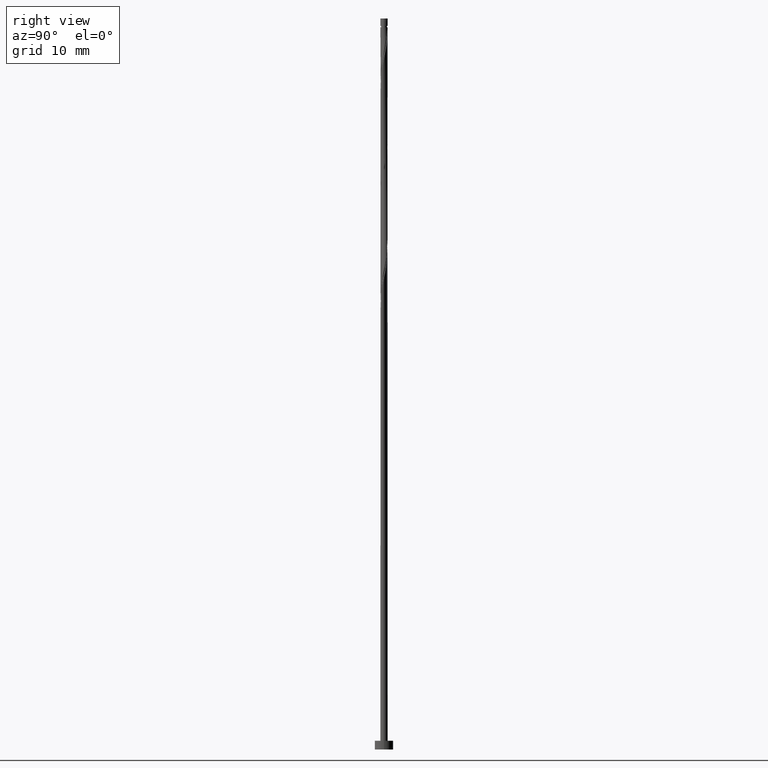
[diagram: clean part render]
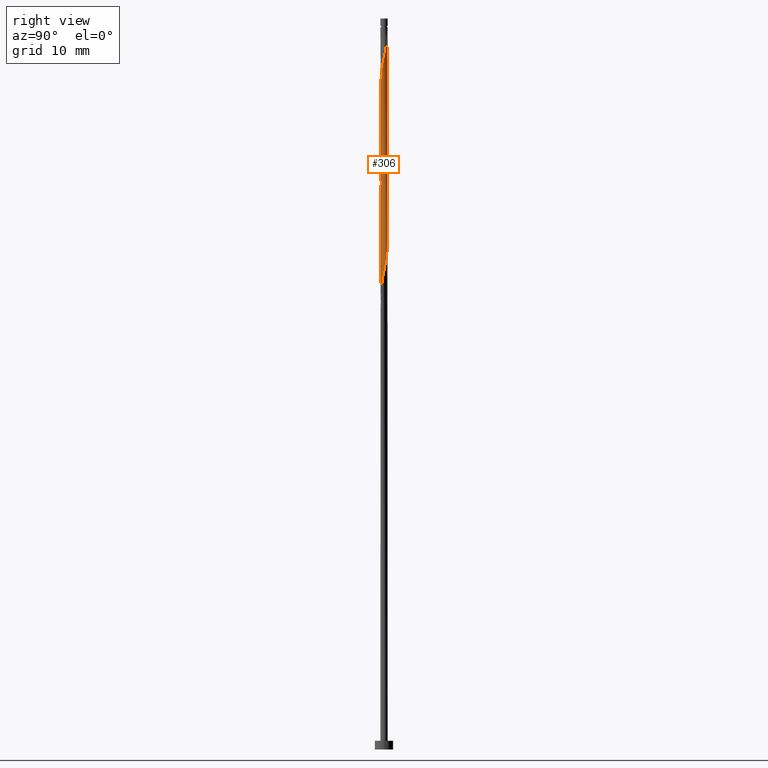
[diagram: same view with one face highlighted and labeled with its STEP entity id]
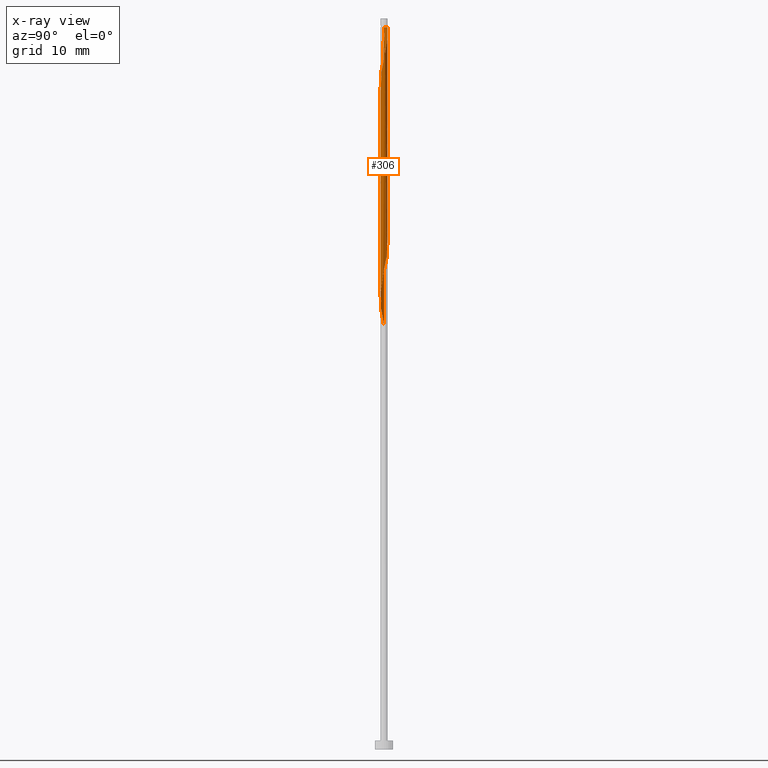
[diagram: x-ray of the same camera — body ghosted, the highlighted face saturated]
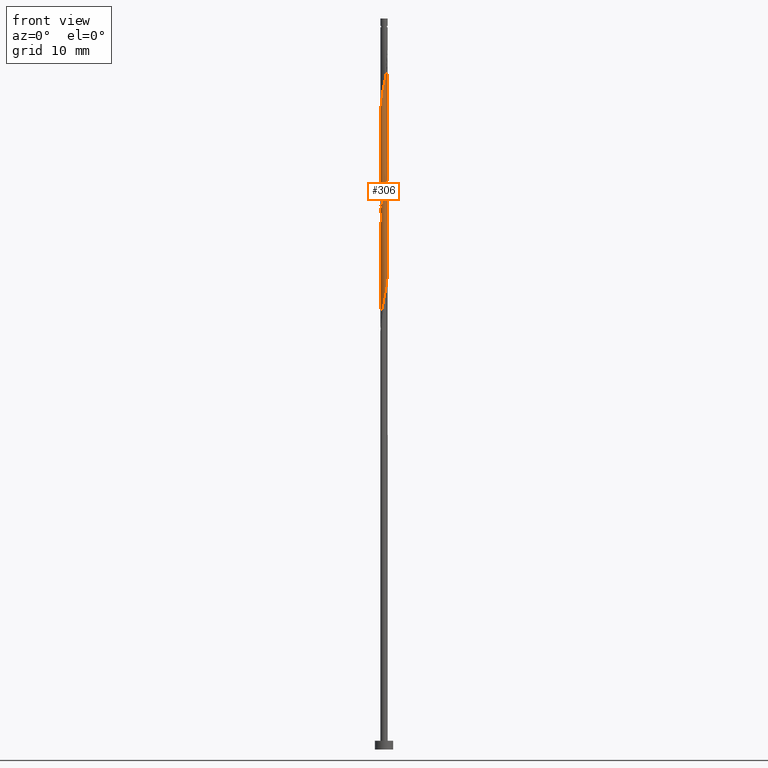
[diagram: same view with one face highlighted and labeled with its STEP entity id]
A machine part, right view. The second image highlights one B-rep face of the part: STEP entity #306.
The next image is the same camera in x-ray: the body ghosted, the highlighted face saturated — about 0% of this face is hidden behind the body in this view.
A second angle (front view) of the same face is appended — the face is thin or edge-on in the first view.
In plain terms, the highlighted cylindrical surface (bore or boss wall) has radius 0.5 mm, axis along (-0, -0, -1).
Its self-contained STEP definition (entity closure, byte-faithful):
#1 = CARTESIAN_POINT ( 'NONE',  ( 0.4741018197097064957, 0.1588315603019300470, 66.29999999999999716 ) ) ;
#8 = CARTESIAN_POINT ( 'NONE',  ( 0.4460955302404527867, 0.2424285027197315423, 66.71666666666668277 ) ) ;
#12 = CYLINDRICAL_SURFACE ( 'NONE', #976, 0.5000000000000000000 ) ;
#15 = CARTESIAN_POINT ( 'NONE',  ( 0.5000000000000007772, 2.959782747103310096E-16, 80.52776939948985557 ) ) ;
#23 = CARTESIAN_POINT ( 'NONE',  ( 0.2387454690295328086, -0.4393183367648896831, 62.96666666666668277 ) ) ;
#35 = EDGE_CURVE ( 'NONE', #68, #916, #470, .T. ) ;
#51 = LINE ( 'NONE', #484, #1127 ) ;
#62 = CARTESIAN_POINT ( 'NONE',  ( -0.01309852316351531321, 0.5075443130627873556, 98.38333333333332575 ) ) ;
#68 = VERTEX_POINT ( 'NONE', #672 ) ;
#69 = CARTESIAN_POINT ( 'NONE',  ( 0.3362772466861008169, 0.3803819322636879940, 82.54999999999998295 ) ) ;
#77 = EDGE_CURVE ( 'NONE', #803, #916, #131, .T. ) ;
#100 = CARTESIAN_POINT ( 'NONE',  ( -0.5021081091789604267, -0.07523461788412846851, 73.38333333333332575 ) ) ;
#106 = CARTESIAN_POINT ( 'NONE',  ( 0.4975590398240158918, -0.1010336722130055764, 80.05000000000002558 ) ) ;
#110 = DIRECTION ( 'NONE',  ( -0.000000000000000000, -0.000000000000000000, -1.000000000000000000 ) ) ;
#114 = CARTESIAN_POINT ( 'NONE',  ( -0.01309852316351412145, -0.5075443130627871335, 61.71666666666667567 ) ) ;
#117 = EDGE_CURVE ( 'NONE', #812, #882, #1317, .T. ) ;
#123 = CARTESIAN_POINT ( 'NONE',  ( 0.2610881054719556005, 0.4264188096004509765, 67.96666666666668277 ) ) ;
#131 = LINE ( 'NONE', #151, #1026 ) ;
#151 = CARTESIAN_POINT ( 'NONE',  ( -0.5000000000000000000, 0.000000000000000000, 100.0000000000000000 ) ) ;
#156 = CARTESIAN_POINT ( 'NONE',  ( -0.5000000000000014433, -0.08152718591022664607, 58.41469696061894012 ) ) ;
#175 = CARTESIAN_POINT ( 'NONE',  ( -0.2387454690295328086, 0.4393183367648896831, 85.46666666666665435 ) ) ;
#187 = EDGE_LOOP ( 'NONE', ( #607, #758, #1189, #451, #907, #781, #670, #373 ) ) ;
#214 = DIRECTION ( 'NONE',  ( -1.000000000000000000, 0.000000000000000000, 0.000000000000000000 ) ) ;
#221 = VERTEX_POINT ( 'NONE', #751 ) ;
#226 = CARTESIAN_POINT ( 'NONE',  ( 0.1612817931379150194, -0.4814156044766936260, 62.54999999999999716 ) ) ;
#245 = CARTESIAN_POINT ( 'NONE',  ( 0.3911863884632766908, -0.3114052174917099070, 92.96666666666666856 ) ) ;
#251 = CARTESIAN_POINT ( 'NONE',  ( 0.3362772466861005394, -0.3803819322636883271, 92.55000000000001137 ) ) ;
#261 = CARTESIAN_POINT ( 'NONE',  ( -0.3746030759990447989, -0.3311684396980705825, 88.79999999999996874 ) ) ;
#263 = CARTESIAN_POINT ( 'NONE',  ( -0.3911863884632766353, -0.3114052174917097404, 59.63333333333333286 ) ) ;
#270 = CARTESIAN_POINT ( 'NONE',  ( 0.5021081091789604267, -0.07523461788412882933, 94.21666666666666856 ) ) ;
#284 = EDGE_CURVE ( 'NONE', #812, #383, #1219, .T. ) ;
#296 = CARTESIAN_POINT ( 'NONE',  ( -0.2610881054719552674, -0.4264188096004511985, 75.46666666666665435 ) ) ;
#306 = ADVANCED_FACE ( 'NONE', ( #648 ), #12, .T. ) ;
#309 = CARTESIAN_POINT ( 'NONE',  ( 0.09949874371066202983, 0.4900000000000007683, 83.79999999999998295 ) ) ;
#329 = CARTESIAN_POINT ( 'NONE',  ( 0.4329970070769386670, -0.2651158103430559243, 64.21666666666665435 ) ) ;
#337 = CARTESIAN_POINT ( 'NONE',  ( -0.3362772466861005394, -0.3803819322636881606, 60.04999999999998295 ) ) ;
#346 = CARTESIAN_POINT ( 'NONE',  ( -0.09949874371066196044, -0.4900000000000007683, 61.29999999999999716 ) ) ;
#359 = CARTESIAN_POINT ( 'NONE',  ( -0.07409163498720072738, -0.4944799587697403798, 90.46666666666665435 ) ) ;
#365 = CARTESIAN_POINT ( 'NONE',  ( -0.5000000000000007772, -0.006450837166011485872, 87.10284623704926332 ) ) ;
#372 =( BOUNDED_CURVE ( )  B_SPLINE_CURVE ( 2, ( #714, #1155, #513, #1251, #1354, #608, #720, #826, #175, #415, #837, #1037, #309, #506, #1150, #69, #736, #501, #1246, #922, #934 ),
 .UNSPECIFIED., .F., .T. ) 
 B_SPLINE_CURVE_WITH_KNOTS ( ( 3, 2, 2, 2, 2, 2, 2, 2, 2, 2, 3 ),
 ( 0.4295248053855291737, 0.4305555555555555802, 0.4444444444444444198, 0.4583333333333333148, 0.4722222222222222099, 0.4861111111111111049, 0.5000000000000000000, 0.5138888888888888395, 0.5277777777777777901, 0.5416666666666666297, 0.5545248053855290626 ),
 .UNSPECIFIED. ) 
 CURVE ( )  GEOMETRIC_REPRESENTATION_ITEM ( )  RATIONAL_B_SPLINE_CURVE ( ( 0.9071930855141275840, 0.9080659294509750845, 0.9090909090909150558, 0.8952797754656496299, 0.9090909090909150558, 0.8952797754656496299, 0.9090909090909150558, 0.8952797754656496299, 0.9090909090909150558, 0.8952797754656496299, 0.9090909090909150558, 0.8952797754656496299, 0.9090909090909150558, 0.8952797754656496299, 0.9090909090909150558, 0.8952797754656496299, 0.9090909090909150558, 0.8952797754656496299, 0.9090909090909150558, 0.8963047551055897122, 0.9071930855141273620 ) ) 
 REPRESENTATION_ITEM ( '' )  );
#373 = ORIENTED_EDGE ( 'NONE', *, *, #946, .F. ) ;
#374 = CARTESIAN_POINT ( 'NONE',  ( 0.4975590398240160028, 0.1010336722130053960, 95.04999999999998295 ) ) ;
#383 = VERTEX_POINT ( 'NONE', #776 ) ;
#410 = CARTESIAN_POINT ( 'NONE',  ( -0.4998335745014880205, 0.01289952716443853141, 72.96666666666664014 ) ) ;
#415 = CARTESIAN_POINT ( 'NONE',  ( -0.1612817931379151581, 0.4814156044766936260, 85.04999999999996874 ) ) ;
#428 = DIRECTION ( 'NONE',  ( -1.000000000000000000, 0.000000000000000000, 0.000000000000000000 ) ) ;
#431 = CARTESIAN_POINT ( 'NONE',  ( -0.1612817931379151581, 0.4814156044766936260, 70.05000000000001137 ) ) ;
#435 = CARTESIAN_POINT ( 'NONE',  ( 0.000000000000000000, 0.000000000000000000, 98.79999999999999716 ) ) ;
#439 = CARTESIAN_POINT ( 'NONE',  ( 0.4652780234504772516, -0.1830747412780305561, 64.63333333333333997 ) ) ;
#443 = DIRECTION ( 'NONE',  ( -0.000000000000000000, -0.000000000000000000, -1.000000000000000000 ) ) ;
#448 = CARTESIAN_POINT ( 'NONE',  ( -0.2610881054719552674, -0.4264188096004511985, 60.46666666666666146 ) ) ;
#451 = ORIENTED_EDGE ( 'NONE', *, *, #77, .T. ) ;
#470 =( BOUNDED_CURVE ( )  B_SPLINE_CURVE ( 2, ( #15, #725, #1084, #106, #754, #1284, #535, #644, #1271, #1047, #868, #763, #1149, #1192, #296, #1178, #511, #877, #1090, #100, #410, #652, #933, #619, #549, #831, #1293, #431, #1250, #1069, #1277, #1172, #123, #963, #956, #8, #1, #1185, #853, #1077, #439, #329, #979, #557, #23, #226, #746, #114, #346, #971, #448, #337, #263, #885, #1212, #156, #569 ),
 .UNSPECIFIED., .F., .T. ) 
 B_SPLINE_CURVE_WITH_KNOTS ( ( 3, 2, 2, 2, 2, 2, 2, 2, 2, 2, 2, 2, 2, 2, 2, 2, 2, 2, 2, 2, 2, 2, 2, 2, 2, 2, 2, 2, 3 ),
 ( 0.5545248053855290626, 0.5555555555555555802, 0.5694444444444444198, 0.5833333333333333703, 0.5972222222222222099, 0.6111111111111111605, 0.6250000000000000000, 0.6388888888888888395, 0.6527777777777777901, 0.6666666666666666297, 0.6805555555555555802, 0.6944444444444444198, 0.7083333333333333703, 0.7222222222222222099, 0.7361111111111111605, 0.7500000000000000000, 0.7638888888888888395, 0.7777777777777777901, 0.7916666666666666297, 0.8055555555555555802, 0.8194444444444444198, 0.8333333333333333703, 0.8472222222222222099, 0.8611111111111111605, 0.8750000000000000000, 0.8888888888888888395, 0.9027777777777777901, 0.9166666666666666297, 0.9295248053855293957 ),
 .UNSPECIFIED. ) 
 CURVE ( )  GEOMETRIC_REPRESENTATION_ITEM ( )  RATIONAL_B_SPLINE_CURVE ( ( 0.9071930855141273620, 0.9080659294509749735, 0.9090909090909150558, 0.8952797754656496299, 0.9090909090909150558, 0.8952797754656496299, 0.9090909090909150558, 0.8952797754656496299, 0.9090909090909150558, 0.8952797754656496299, 0.9090909090909150558, 0.8952797754656496299, 0.9090909090909150558, 0.8952797754656496299, 0.9090909090909150558, 0.8952797754656496299, 0.9090909090909150558, 0.8952797754656496299, 0.9090909090909150558, 0.8952797754656496299, 0.9090909090909150558, 0.8952797754656496299, 0.9090909090909150558, 0.8952797754656496299, 0.9090909090909150558, 0.8952797754656496299, 0.9090909090909150558, 0.8952797754656496299, 0.9090909090909150558, 0.8952797754656496299, 0.9090909090909150558, 0.8952797754656496299, 0.9090909090909150558, 0.8952797754656496299, 0.9090909090909150558, 0.8952797754656496299, 0.9090909090909150558, 0.8952797754656496299, 0.9090909090909150558, 0.8952797754656496299, 0.9090909090909150558, 0.8952797754656496299, 0.9090909090909150558, 0.8952797754656496299, 0.9090909090909150558, 0.8952797754656496299, 0.9090909090909150558, 0.8952797754656496299, 0.9090909090909150558, 0.8952797754656496299, 0.9090909090909150558, 0.8952797754656496299, 0.9090909090909150558, 0.8952797754656496299, 0.9090909090909150558, 0.8963047551055893791, 0.9071930855141279171 ) ) 
 REPRESENTATION_ITEM ( '' )  );
#484 = CARTESIAN_POINT ( 'NONE',  ( 0.5000000000000000000, 6.123233995736766036E-17, 100.0000000000000000 ) ) ;
#501 = CARTESIAN_POINT ( 'NONE',  ( 0.4460955302404527867, 0.2424285027197315423, 81.71666666666664014 ) ) ;
#506 = CARTESIAN_POINT ( 'NONE',  ( 0.1858989642578099122, 0.4724556869372143475, 83.38333333333332575 ) ) ;
#511 = CARTESIAN_POINT ( 'NONE',  ( -0.3911863884632766353, -0.3114052174917097404, 74.63333333333331154 ) ) ;
#513 = CARTESIAN_POINT ( 'NONE',  ( -0.4998335745014880205, 0.01289952716443853141, 87.96666666666666856 ) ) ;
#525 = CARTESIAN_POINT ( 'NONE',  ( -0.5000000000000006661, 1.559254633332027816E-16, 88.02776939948988399 ) ) ;
#535 = CARTESIAN_POINT ( 'NONE',  ( 0.3746030759990445214, -0.3311684396980708600, 78.80000000000002558 ) ) ;
#549 = CARTESIAN_POINT ( 'NONE',  ( -0.3746030759990446324, 0.3311684396980706935, 71.29999999999999716 ) ) ;
#557 = CARTESIAN_POINT ( 'NONE',  ( 0.3162091449211504313, -0.3972210690530859067, 63.38333333333333286 ) ) ;
#562 = CARTESIAN_POINT ( 'NONE',  ( 0.000000000000000000, 0.000000000000000000, 100.0000000000000000 ) ) ;
#569 = CARTESIAN_POINT ( 'NONE',  ( -0.5000000000000006661, -4.855164127740446616E-16, 58.02776939948987689 ) ) ;
#580 = CARTESIAN_POINT ( 'NONE',  ( 0.4460955302404527867, -0.2424285027197316811, 93.38333333333333997 ) ) ;
#596 = CARTESIAN_POINT ( 'NONE',  ( 0.3162091449211505423, 0.3972210690530860178, 96.71666666666665435 ) ) ;
#602 = CARTESIAN_POINT ( 'NONE',  ( -0.5000000000000007772, -9.803696796398973244E-17, 87.07223060051012453 ) ) ;
#607 = ORIENTED_EDGE ( 'NONE', *, *, #117, .F. ) ;
#608 = CARTESIAN_POINT ( 'NONE',  ( -0.4329970070769387780, 0.2651158103430555912, 86.71666666666666856 ) ) ;
#619 = CARTESIAN_POINT ( 'NONE',  ( -0.4329970070769387780, 0.2651158103430555912, 71.71666666666664014 ) ) ;
#622 = AXIS2_PLACEMENT_3D ( 'NONE', #435, #110, #214 ) ;
#644 = CARTESIAN_POINT ( 'NONE',  ( 0.3162091449211504313, -0.3972210690530859067, 78.38333333333332575 ) ) ;
#648 = FACE_OUTER_BOUND ( 'NONE', #187, .T. ) ;
#652 = CARTESIAN_POINT ( 'NONE',  ( -0.4975590398240158918, 0.1010336722130055070, 72.54999999999999716 ) ) ;
#661 = EDGE_CURVE ( 'NONE', #803, #383, #806, .T. ) ;
#670 = ORIENTED_EDGE ( 'NONE', *, *, #1194, .T. ) ;
#672 = CARTESIAN_POINT ( 'NONE',  ( 0.5000000000000007772, 2.959782747103310096E-16, 80.52776939948985557 ) ) ;
#678 = CARTESIAN_POINT ( 'NONE',  ( -0.5000000000000000000, 0.000000000000000000, 100.0000000000000000 ) ) ;
#686 = DIRECTION ( 'NONE',  ( -0.000000000000000000, -0.000000000000000000, -1.000000000000000000 ) ) ;
#699 = CARTESIAN_POINT ( 'NONE',  ( 0.2387454690295330029, 0.4393183367648896831, 97.13333333333333997 ) ) ;
#707 = CARTESIAN_POINT ( 'NONE',  ( -0.4652780234504773071, -0.1830747412780305006, 87.96666666666666856 ) ) ;
#714 = CARTESIAN_POINT ( 'NONE',  ( -0.5000000000000006661, 1.559254633332027816E-16, 88.02776939948988399 ) ) ;
#720 = CARTESIAN_POINT ( 'NONE',  ( -0.3746030759990446324, 0.3311684396980706935, 86.29999999999999716 ) ) ;
#725 = CARTESIAN_POINT ( 'NONE',  ( 0.5000000000000007772, -0.006450837166010383456, 80.49715376295073099 ) ) ;
#731 = CARTESIAN_POINT ( 'NONE',  ( -0.5000000000000002220, 0.000000000000000000, 98.79999999999999716 ) ) ;
#736 = CARTESIAN_POINT ( 'NONE',  ( 0.3911863884632766353, 0.3114052174917097404, 82.13333333333333997 ) ) ;
#746 = CARTESIAN_POINT ( 'NONE',  ( 0.07409163498720061636, -0.4944799587697402687, 62.13333333333331865 ) ) ;
#751 = CARTESIAN_POINT ( 'NONE',  ( 0.5000000000000000000, 6.123233995736766036E-17, 98.79999999999999716 ) ) ;
#754 = CARTESIAN_POINT ( 'NONE',  ( 0.4652780234504772516, -0.1830747412780305561, 79.63333333333333997 ) ) ;
#758 = ORIENTED_EDGE ( 'NONE', *, *, #284, .T. ) ;
#763 = CARTESIAN_POINT ( 'NONE',  ( -0.01309852316351412145, -0.5075443130627871335, 76.71666666666666856 ) ) ;
#776 = CARTESIAN_POINT ( 'NONE',  ( -0.09949874371066166900, 0.4899999999999998801, 98.79999999999999716 ) ) ;
#781 = ORIENTED_EDGE ( 'NONE', *, *, #1194, .F. ) ;
#783 = CARTESIAN_POINT ( 'NONE',  ( 0.01309852316351374675, -0.5075443130627872446, 90.88333333333333997 ) ) ;
#790 = CARTESIAN_POINT ( 'NONE',  ( -0.3162091449211504868, -0.3972210690530860178, 89.21666666666668277 ) ) ;
#796 = CARTESIAN_POINT ( 'NONE',  ( 0.4329970070769391111, 0.2651158103430553137, 95.88333333333333997 ) ) ;
#803 = VERTEX_POINT ( 'NONE', #602 ) ;
#806 =( BOUNDED_CURVE ( )  B_SPLINE_CURVE ( 2, ( #889, #365, #1217, #902, #707, #1109, #261, #790, #1303, #1315, #359, #783, #1017, #1204, #908, #251, #245, #580, #1000, #270, #1309, #374, #1024, #796, #1330, #596, #699, #1128, #896, #62, #917 ),
 .UNSPECIFIED., .F., .T. ) 
 B_SPLINE_CURVE_WITH_KNOTS ( ( 3, 2, 2, 2, 2, 2, 2, 2, 2, 2, 2, 2, 2, 2, 2, 3 ),
 ( 0.5545248053855292847, 0.5555555555555555802, 0.5694444444444444198, 0.5833333333333332593, 0.5972222222222222099, 0.6111111111111112715, 0.6250000000000001110, 0.6388888888888889506, 0.6527777777777779011, 0.6666666666666668517, 0.6805555555555556912, 0.6944444444444446418, 0.7083333333333334814, 0.7222222222222224319, 0.7361111111111113825, 0.7500000000000002220 ),
 .UNSPECIFIED. ) 
 CURVE ( )  GEOMETRIC_REPRESENTATION_ITEM ( )  RATIONAL_B_SPLINE_CURVE ( ( 0.9071930855141279171, 0.9080659294509754176, 0.9090909090909153889, 0.8952797754656498519, 0.9090909090909153889, 0.8952797754656498519, 0.9090909090909153889, 0.8952797754656498519, 0.9090909090909153889, 0.8952797754656498519, 0.9090909090909153889, 0.8952797754656498519, 0.9090909090909153889, 0.8952797754656498519, 0.9090909090909153889, 0.8952797754656498519, 0.9090909090909153889, 0.8952797754656498519, 0.9090909090909153889, 0.8952797754656498519, 0.9090909090909153889, 0.8952797754656498519, 0.9090909090909153889, 0.8952797754656498519, 0.9090909090909153889, 0.8952797754656498519, 0.9090909090909153889, 0.8952797754656498519, 0.9090909090909153889, 0.8952797754656496299, 0.9090909090909156109 ) ) 
 REPRESENTATION_ITEM ( '' )  );
#812 = VERTEX_POINT ( 'NONE', #731 ) ;
#822 = VECTOR ( 'NONE', #1010, 1000.000000000000000 ) ;
#826 = CARTESIAN_POINT ( 'NONE',  ( -0.3162091449211504313, 0.3972210690530858512, 85.88333333333335418 ) ) ;
#831 = CARTESIAN_POINT ( 'NONE',  ( -0.3162091449211504313, 0.3972210690530858512, 70.88333333333331154 ) ) ;
#837 = CARTESIAN_POINT ( 'NONE',  ( -0.07409163498720063024, 0.4944799587697402687, 84.63333333333332575 ) ) ;
#853 = CARTESIAN_POINT ( 'NONE',  ( 0.4998335745014881315, -0.01289952716443870315, 65.46666666666666856 ) ) ;
#868 = CARTESIAN_POINT ( 'NONE',  ( 0.07409163498720061636, -0.4944799587697402687, 77.13333333333332575 ) ) ;
#877 = CARTESIAN_POINT ( 'NONE',  ( -0.4460955302404527312, -0.2424285027197316256, 74.21666666666666856 ) ) ;
#882 = VERTEX_POINT ( 'NONE', #525 ) ;
#885 = CARTESIAN_POINT ( 'NONE',  ( -0.4460955302404527312, -0.2424285027197316256, 59.21666666666666146 ) ) ;
#889 = CARTESIAN_POINT ( 'NONE',  ( -0.5000000000000007772, -9.803696796398973244E-17, 87.07223060051012453 ) ) ;
#896 = CARTESIAN_POINT ( 'NONE',  ( 0.07409163498720100494, 0.4944799587697403798, 97.96666666666666856 ) ) ;
#902 = CARTESIAN_POINT ( 'NONE',  ( -0.4975590398240160028, -0.1010336722130054932, 87.55000000000001137 ) ) ;
#905 = DIRECTION ( 'NONE',  ( -0.000000000000000000, -0.000000000000000000, -1.000000000000000000 ) ) ;
#907 = ORIENTED_EDGE ( 'NONE', *, *, #35, .F. ) ;
#908 = CARTESIAN_POINT ( 'NONE',  ( 0.2610881054719552119, -0.4264188096004513095, 92.13333333333335418 ) ) ;
#916 = VERTEX_POINT ( 'NONE', #1261 ) ;
#917 = CARTESIAN_POINT ( 'NONE',  ( -0.09949874371066166900, 0.4899999999999998801, 98.80000000000001137 ) ) ;
#922 = CARTESIAN_POINT ( 'NONE',  ( 0.5000000000000006661, 0.08152718591022839467, 80.91469696061896855 ) ) ;
#933 = CARTESIAN_POINT ( 'NONE',  ( -0.4652780234504771961, 0.1830747412780305838, 72.13333333333333997 ) ) ;
#934 = CARTESIAN_POINT ( 'NONE',  ( 0.5000000000000007772, 2.959782747103310096E-16, 80.52776939948985557 ) ) ;
#946 = EDGE_CURVE ( 'NONE', #882, #68, #372, .T. ) ;
#956 = CARTESIAN_POINT ( 'NONE',  ( 0.3911863884632766353, 0.3114052174917097404, 67.13333333333333997 ) ) ;
#963 = CARTESIAN_POINT ( 'NONE',  ( 0.3362772466861008169, 0.3803819322636879940, 67.54999999999999716 ) ) ;
#971 = CARTESIAN_POINT ( 'NONE',  ( -0.1858989642578100510, -0.4724556869372142365, 60.88333333333333286 ) ) ;
#976 = AXIS2_PLACEMENT_3D ( 'NONE', #562, #443, #428 ) ;
#979 = CARTESIAN_POINT ( 'NONE',  ( 0.3746030759990445214, -0.3311684396980708600, 63.80000000000001137 ) ) ;
#1000 = CARTESIAN_POINT ( 'NONE',  ( 0.4741018197097065512, -0.1588315603019302691, 93.80000000000001137 ) ) ;
#1010 = DIRECTION ( 'NONE',  ( -0.000000000000000000, -0.000000000000000000, -1.000000000000000000 ) ) ;
#1017 = CARTESIAN_POINT ( 'NONE',  ( 0.09949874371066182166, -0.4900000000000008238, 91.30000000000002558 ) ) ;
#1024 = CARTESIAN_POINT ( 'NONE',  ( 0.4652780234504774182, 0.1830747412780303895, 95.46666666666666856 ) ) ;
#1026 = VECTOR ( 'NONE', #686, 1000.000000000000000 ) ;
#1037 = CARTESIAN_POINT ( 'NONE',  ( 0.01309852316351392196, 0.5075443130627870225, 84.21666666666668277 ) ) ;
#1047 = CARTESIAN_POINT ( 'NONE',  ( 0.1612817931379150194, -0.4814156044766936260, 77.55000000000002558 ) ) ;
#1069 = CARTESIAN_POINT ( 'NONE',  ( 0.01309852316351392196, 0.5075443130627870225, 69.21666666666665435 ) ) ;
#1077 = CARTESIAN_POINT ( 'NONE',  ( 0.4975590398240158918, -0.1010336722130055764, 65.04999999999999716 ) ) ;
#1084 = CARTESIAN_POINT ( 'NONE',  ( 0.4998335745014881315, -0.01289952716443870315, 80.46666666666661172 ) ) ;
#1090 = CARTESIAN_POINT ( 'NONE',  ( -0.4741018197097065512, -0.1588315603019298805, 73.79999999999999716 ) ) ;
#1109 = CARTESIAN_POINT ( 'NONE',  ( -0.4329970070769388890, -0.2651158103430555912, 88.38333333333331154 ) ) ;
#1127 = VECTOR ( 'NONE', #905, 1000.000000000000000 ) ;
#1128 = CARTESIAN_POINT ( 'NONE',  ( 0.1612817931379155190, 0.4814156044766936260, 97.54999999999999716 ) ) ;
#1149 = CARTESIAN_POINT ( 'NONE',  ( -0.09949874371066196044, -0.4900000000000007683, 76.30000000000001137 ) ) ;
#1150 = CARTESIAN_POINT ( 'NONE',  ( 0.2610881054719556005, 0.4264188096004509765, 82.96666666666664014 ) ) ;
#1155 = CARTESIAN_POINT ( 'NONE',  ( -0.5000000000000006661, 0.006450837166010866576, 87.99715376295075941 ) ) ;
#1172 = CARTESIAN_POINT ( 'NONE',  ( 0.1858989642578099122, 0.4724556869372143475, 68.38333333333333997 ) ) ;
#1178 = CARTESIAN_POINT ( 'NONE',  ( -0.3362772466861005394, -0.3803819322636881606, 75.05000000000001137 ) ) ;
#1185 = CARTESIAN_POINT ( 'NONE',  ( 0.5021081091789604267, 0.07523461788412814932, 65.88333333333332575 ) ) ;
#1189 = ORIENTED_EDGE ( 'NONE', *, *, #661, .F. ) ;
#1192 = CARTESIAN_POINT ( 'NONE',  ( -0.1858989642578100510, -0.4724556869372142365, 75.88333333333333997 ) ) ;
#1194 = EDGE_CURVE ( 'NONE', #221, #68, #51, .T. ) ;
#1204 = CARTESIAN_POINT ( 'NONE',  ( 0.1858989642578097734, -0.4724556869372145695, 91.71666666666665435 ) ) ;
#1212 = CARTESIAN_POINT ( 'NONE',  ( -0.4741018197097065512, -0.1588315603019298805, 58.80000000000000426 ) ) ;
#1217 = CARTESIAN_POINT ( 'NONE',  ( -0.4998335745014880205, -0.01289952716443847763, 87.13333333333333997 ) ) ;
#1219 = CIRCLE ( 'NONE', #622, 0.5000000000000002220 ) ;
#1246 = CARTESIAN_POINT ( 'NONE',  ( 0.4741018197097064957, 0.1588315603019300470, 81.29999999999999716 ) ) ;
#1250 = CARTESIAN_POINT ( 'NONE',  ( -0.07409163498720063024, 0.4944799587697402687, 69.63333333333333997 ) ) ;
#1251 = CARTESIAN_POINT ( 'NONE',  ( -0.4975590398240158918, 0.1010336722130055070, 87.54999999999999716 ) ) ;
#1261 = CARTESIAN_POINT ( 'NONE',  ( -0.5000000000000006661, -4.855164127740446616E-16, 58.02776939948987689 ) ) ;
#1271 = CARTESIAN_POINT ( 'NONE',  ( 0.2387454690295328086, -0.4393183367648896831, 77.96666666666666856 ) ) ;
#1277 = CARTESIAN_POINT ( 'NONE',  ( 0.09949874371066202983, 0.4900000000000007683, 68.80000000000001137 ) ) ;
#1284 = CARTESIAN_POINT ( 'NONE',  ( 0.4329970070769386670, -0.2651158103430559243, 79.21666666666665435 ) ) ;
#1293 = CARTESIAN_POINT ( 'NONE',  ( -0.2387454690295328086, 0.4393183367648896831, 70.46666666666666856 ) ) ;
#1303 = CARTESIAN_POINT ( 'NONE',  ( -0.2387454690295328918, -0.4393183367648896831, 89.63333333333331154 ) ) ;
#1309 = CARTESIAN_POINT ( 'NONE',  ( 0.4998335745014880205, 0.01289952716443851580, 94.63333333333335418 ) ) ;
#1315 = CARTESIAN_POINT ( 'NONE',  ( -0.1612817931379152137, -0.4814156044766937370, 90.05000000000002558 ) ) ;
#1317 = LINE ( 'NONE', #678, #822 ) ;
#1330 = CARTESIAN_POINT ( 'NONE',  ( 0.3746030759990447989, 0.3311684396980708045, 96.30000000000001137 ) ) ;
#1354 = CARTESIAN_POINT ( 'NONE',  ( -0.4652780234504771961, 0.1830747412780305838, 87.13333333333333997 ) ) ;